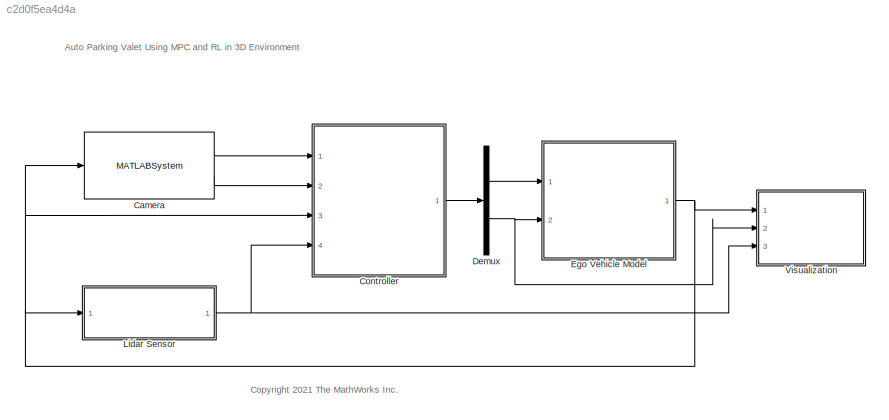
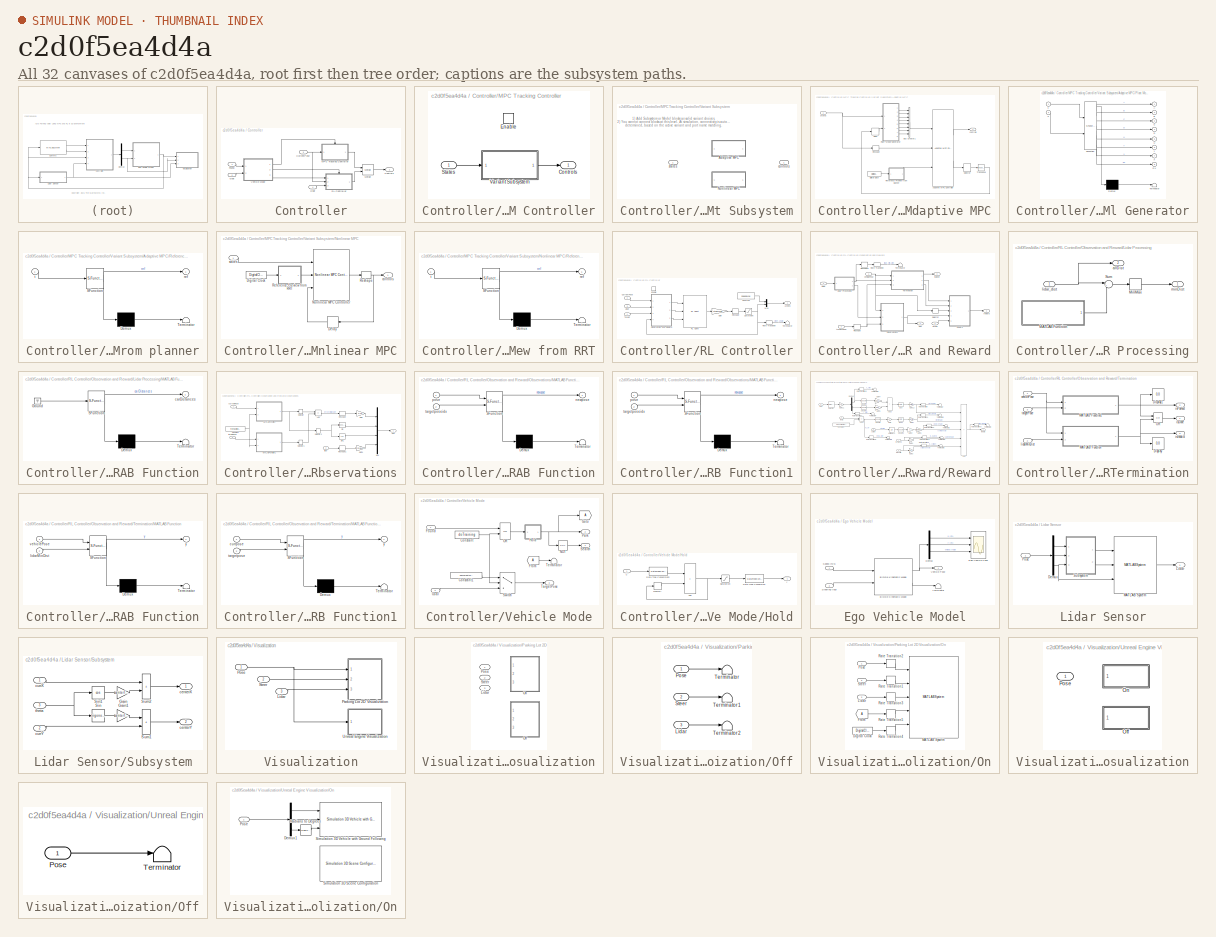
[diagram: thumbnail index - all 32 canvases of the model, root first then tree order]
MODEL slx_c2d0f5ea4d4a
KIND model
CONFIG AbsTol = 1e-4
CONFIG EnableMultiTasking = off
CONFIG FixedStep = auto
CONFIG InitFcn = % show(map);\nif doTraining == 0 \nsetOccupied(map, 1:46); \nsetFree(map, freeSpotIndex); \nend
CONFIG MaxStep = auto
CONFIG MinStep = auto
CONFIG RelTol = 1e-3
CONFIG SampleTimeConstraint = Unconstrained
CONFIG SolverName = VariableStepAuto
CONFIG StartTime = 0.0
CONFIG StopTime = Tf
BLOCK [MATLABSystem] Camera
  MapObject = map
  MaskDisplay = disp('Camera');\nport_label('input',1,'pose');\nport_label('output',1,'found');\nport_label('output',2,'goal');
  MaskType = Camera
  MaxDepth = cameraDepth
  MaxViewAngle = cameraViewAngle
  Ports = [1, 2]
  System = Camera
BLOCK [SubSystem] Controller
  Ports = [4, 1]
  RequestExecContextInheritance = off
BLOCK [Outport] Controller/Controls
BLOCK [Inport] Controller/CurrentPose
  Port = 3
BLOCK [Inport] Controller/Found
BLOCK [Inport] Controller/Goal
  Port = 2
BLOCK [Inport] Controller/Lidar
  Port = 4
BLOCK [SubSystem] Controller/MPC Tracking Controller
  Ports = [1, 1, 1]
  RequestExecContextInheritance = off
BLOCK [Outport] Controller/MPC Tracking Controller/Controls
BLOCK [EnablePort] Controller/MPC Tracking Controller/Enable
  Ports = []
  StatesWhenEnabling = reset
BLOCK [Inport] Controller/MPC Tracking Controller/States
BLOCK [SubSystem] Controller/MPC Tracking Controller/Variant Subsystem
  LabelModeActiveChoice = Choice_1
  Ports = [1, 1]
  RequestExecContextInheritance = off
  Variant = on
  VariantControlMode = label
BLOCK [SubSystem] Controller/MPC Tracking Controller/Variant Subsystem/Adaptive MPC
  Ports = [1, 1]
  RequestExecContextInheritance = off
  VariantControl = Choice_1
BLOCK [Reference] Controller/MPC Tracking Controller/Variant Subsystem/Adaptive MPC/Adaptive MPC Controller  REF=mpclib/Adaptive MPC Controller  (lib defined in mdl_ae329e0e0455)
  Ports = [3, 2]
  SCDEnableBlockLinearizationSpecification = on
  SourceBlock = mpclib/Adaptive MPC Controller
  SourceProductBaseCode = MP
  SourceType = Adaptive MPC
BLOCK [BusCreator] Controller/MPC Tracking Controller/Variant Subsystem/Adaptive MPC/Bus Creator1
  DisplayOption = bar
  InheritFromInputs = on
  Inputs = 8
  Ports = [8, 1]
BLOCK [Delay] Controller/MPC Tracking Controller/Variant Subsystem/Adaptive MPC/Delay
  DelayLength = 1
  InputPortMap = u0
  Ports = [1, 1]
BLOCK [DigitalClock] Controller/MPC Tracking Controller/Variant Subsystem/Adaptive MPC/Digital Clock
  SampleTime = Ts
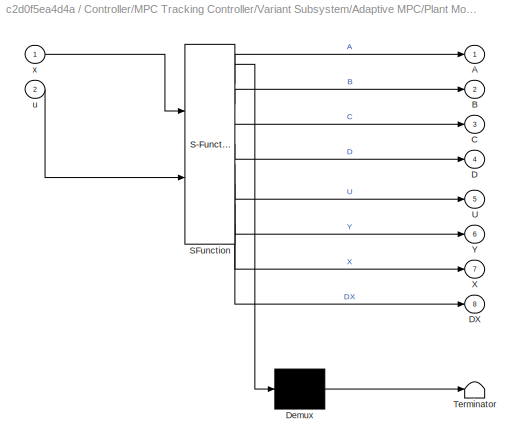
BLOCK [SubSystem] Controller/MPC Tracking Controller/Variant Subsystem/Adaptive MPC/Plant Model Generator
  ErrorFcn = Stateflow.Translate.translate
  PermitHierarchicalResolution = ExplicitOnly
  Ports = [2, 8]
  RequestExecContextInheritance = off
  SFBlockType = MATLAB Function
  TreatAsAtomicUnit = on
BLOCK [Demux] Controller/MPC Tracking Controller/Variant Subsystem/Adaptive MPC/Plant Model Generator/ Demux 
  Outputs = 1
  Ports = [1, 1]
BLOCK [S-Function] Controller/MPC Tracking Controller/Variant Subsystem/Adaptive MPC/Plant Model Generator/ SFunction 
  EnableBusSupport = on
  FunctionName = sf_sfun
  Parameters = Ts
  PortCounts = [2 9]
  Ports = [2, 9]
  SFcnIsStateOwnerBlock = off
  SFunctionDeploymentMode = off
  Tag = Stateflow S-Function 7
BLOCK [Terminator] Controller/MPC Tracking Controller/Variant Subsystem/Adaptive MPC/Plant Model Generator/ Terminator 
BLOCK [Outport] Controller/MPC Tracking Controller/Variant Subsystem/Adaptive MPC/Plant Model Generator/A
  VectorParamsAs1DForOutWhenUnconnected = off
BLOCK [Outport] Controller/MPC Tracking Controller/Variant Subsystem/Adaptive MPC/Plant Model Generator/B
  Port = 2
  VectorParamsAs1DForOutWhenUnconnected = off
BLOCK [Outport] Controller/MPC Tracking Controller/Variant Subsystem/Adaptive MPC/Plant Model Generator/C
  Port = 3
  VectorParamsAs1DForOutWhenUnconnected = off
BLOCK [Outport] Controller/MPC Tracking Controller/Variant Subsystem/Adaptive MPC/Plant Model Generator/D
  Port = 4
  VectorParamsAs1DForOutWhenUnconnected = off
BLOCK [Outport] Controller/MPC Tracking Controller/Variant Subsystem/Adaptive MPC/Plant Model Generator/DX
  Port = 8
  VectorParamsAs1DForOutWhenUnconnected = off
BLOCK [Outport] Controller/MPC Tracking Controller/Variant Subsystem/Adaptive MPC/Plant Model Generator/U
  Port = 5
  VectorParamsAs1DForOutWhenUnconnected = off
BLOCK [Outport] Controller/MPC Tracking Controller/Variant Subsystem/Adaptive MPC/Plant Model Generator/X
  Port = 7
  VectorParamsAs1DForOutWhenUnconnected = off
BLOCK [Outport] Controller/MPC Tracking Controller/Variant Subsystem/Adaptive MPC/Plant Model Generator/Y
  Port = 6
  VectorParamsAs1DForOutWhenUnconnected = off
BLOCK [Inport] Controller/MPC Tracking Controller/Variant Subsystem/Adaptive MPC/Plant Model Generator/u
  Port = 2
BLOCK [Inport] Controller/MPC Tracking Controller/Variant Subsystem/Adaptive MPC/Plant Model Generator/x
BLOCK [SubSystem] Controller/MPC Tracking Controller/Variant Subsystem/Adaptive MPC/Reference Preview from planner
  ErrorFcn = Stateflow.Translate.translate
  PermitHierarchicalResolution = ExplicitOnly
  Ports = [1, 1]
  RequestExecContextInheritance = off
  SFBlockType = MATLAB Function
  TreatAsAtomicUnit = on
BLOCK [Demux] Controller/MPC Tracking Controller/Variant Subsystem/Adaptive MPC/Reference Preview from planner/ Demux 
  Outputs = 1
  Ports = [1, 1]
BLOCK [S-Function] Controller/MPC Tracking Controller/Variant Subsystem/Adaptive MPC/Reference Preview from planner/ SFunction 
  EnableBusSupport = on
  FunctionName = sf_sfun
  Parameters = Tf,Ts,Xref,pTracking
  PortCounts = [1 2]
  Ports = [1, 2]
  SFcnIsStateOwnerBlock = off
  SFunctionDeploymentMode = off
  Tag = Stateflow S-Function 8
BLOCK [Terminator] Controller/MPC Tracking Controller/Variant Subsystem/Adaptive MPC/Reference Preview from planner/ Terminator 
BLOCK [Outport] Controller/MPC Tracking Controller/Variant Subsystem/Adaptive MPC/Reference Preview from planner/ref
  VectorParamsAs1DForOutWhenUnconnected = off
BLOCK [Inport] Controller/MPC Tracking Controller/Variant Subsystem/Adaptive MPC/Reference Preview from planner/t
BLOCK [Reshape] Controller/MPC Tracking Controller/Variant Subsystem/Adaptive MPC/Reshape
  OutputDimensionality = Customize
  OutputDimensions = [3,1]
  Ports = [1, 1]
BLOCK [Selector] Controller/MPC Tracking Controller/Variant Subsystem/Adaptive MPC/Selector
  IndexOptions = Index vector (dialog),Select all
  Indices = 2,2
  InputPortWidth = 3
  NumberOfDimensions = 2
  OutputSizes = 1,1
  Ports = [1, 1]
BLOCK [Math] Controller/MPC Tracking Controller/Variant Subsystem/Adaptive MPC/Transpose
  Operator = transpose
  Ports = [1, 1]
  SignedPower = on
BLOCK [Outport] Controller/MPC Tracking Controller/Variant Subsystem/Adaptive MPC/controls
BLOCK [Inport] Controller/MPC Tracking Controller/Variant Subsystem/Adaptive MPC/states
BLOCK [SubSystem] Controller/MPC Tracking Controller/Variant Subsystem/Nonlinear MPC
  Ports = [1, 1]
  RequestExecContextInheritance = off
  VariantControl = Choice_2
BLOCK [Delay] Controller/MPC Tracking Controller/Variant Subsystem/Nonlinear MPC/Delay
  DelayLength = 1
  InputPortMap = u0
  Ports = [1, 1]
BLOCK [DigitalClock] Controller/MPC Tracking Controller/Variant Subsystem/Nonlinear MPC/Digital Clock
  SampleTime = Ts
BLOCK [Reference] Controller/MPC Tracking Controller/Variant Subsystem/Nonlinear MPC/Nonlinear MPC Controller  REF=mpclib/Nonlinear MPC Controller  (lib defined in mdl_ae329e0e0455)
  Ports = [3, 1]
  SCDEnableBlockLinearizationSpecification = on
  SourceBlock = mpclib/Nonlinear MPC Controller
  SourceProductBaseCode = MP
  SourceType = NonlinearMPC
BLOCK [SubSystem] Controller/MPC Tracking Controller/Variant Subsystem/Nonlinear MPC/Reference Preview from RRT
  ErrorFcn = Stateflow.Translate.translate
  PermitHierarchicalResolution = ExplicitOnly
  Ports = [1, 1]
  RequestExecContextInheritance = off
  SFBlockType = MATLAB Function
  TreatAsAtomicUnit = on
BLOCK [Demux] Controller/MPC Tracking Controller/Variant Subsystem/Nonlinear MPC/Reference Preview from RRT/ Demux 
  Outputs = 1
  Ports = [1, 1]
BLOCK [S-Function] Controller/MPC Tracking Controller/Variant Subsystem/Nonlinear MPC/Reference Preview from RRT/ SFunction 
  EnableBusSupport = on
  FunctionName = sf_sfun
  Parameters = Tf,Ts,Xref,pTracking
  PortCounts = [1 2]
  Ports = [1, 2]
  SFcnIsStateOwnerBlock = off
  SFunctionDeploymentMode = off
  Tag = Stateflow S-Function 4
BLOCK [Terminator] Controller/MPC Tracking Controller/Variant Subsystem/Nonlinear MPC/Reference Preview from RRT/ Terminator 
BLOCK [Outport] Controller/MPC Tracking Controller/Variant Subsystem/Nonlinear MPC/Reference Preview from RRT/ref
  VectorParamsAs1DForOutWhenUnconnected = off
BLOCK [Inport] Controller/MPC Tracking Controller/Variant Subsystem/Nonlinear MPC/Reference Preview from RRT/t
BLOCK [Reshape] Controller/MPC Tracking Controller/Variant Subsystem/Nonlinear MPC/Reshape
  OutputDimensionality = Customize
  OutputDimensions = [2,1]
  Ports = [1, 1]
BLOCK [Outport] Controller/MPC Tracking Controller/Variant Subsystem/Nonlinear MPC/controls
BLOCK [Inport] Controller/MPC Tracking Controller/Variant Subsystem/Nonlinear MPC/states
BLOCK [Outport] Controller/MPC Tracking Controller/Variant Subsystem/controls
BLOCK [Inport] Controller/MPC Tracking Controller/Variant Subsystem/states
BLOCK [Merge] Controller/Merge
  Ports = [2, 1]
BLOCK [SubSystem] Controller/RL Controller
  Ports = [3, 1, 1]
  RequestExecContextInheritance = off
BLOCK [Outport] Controller/RL Controller/Actions
BLOCK [Constant] Controller/RL Controller/Constant
  Value = speedMax
BLOCK [Inport] Controller/RL Controller/CurrentPose
  Port = 2
BLOCK [EnablePort] Controller/RL Controller/Enable
  Ports = []
  StatesWhenEnabling = reset
BLOCK [Gain] Controller/RL Controller/Gain
  Gain = steerMax
BLOCK [Inport] Controller/RL Controller/Lidar
  Port = 3
BLOCK [Mux] Controller/RL Controller/Mux
  DisplayOption = bar
  Inputs = 2
  Ports = [2, 1]
BLOCK [SubSystem] Controller/RL Controller/Observation and Reward
  Ports = [4, 3]
  RequestExecContextInheritance = off
BLOCK [Inport] Controller/RL Controller/Observation and Reward/Lidar
  Port = 2
BLOCK [SubSystem] Controller/RL Controller/Observation and Reward/Lidar Processing
  Ports = [1, 2]
  RequestExecContextInheritance = off
BLOCK [SubSystem] Controller/RL Controller/Observation and Reward/Lidar Processing/MATLAB Function
  ErrorFcn = Stateflow.Translate.translate
  PermitHierarchicalResolution = ExplicitOnly
  Ports = [0, 1]
  RequestExecContextInheritance = off
  SFBlockType = MATLAB Function
  TreatAsAtomicUnit = on
BLOCK [Demux] Controller/RL Controller/Observation and Reward/Lidar Processing/MATLAB Function/ Demux 
  Outputs = 1
  Ports = [1, 1]
BLOCK [Ground] Controller/RL Controller/Observation and Reward/Lidar Processing/MATLAB Function/ Ground 
BLOCK [S-Function] Controller/RL Controller/Observation and Reward/Lidar Processing/MATLAB Function/ SFunction 
  EnableBusSupport = on
  FunctionName = sf_sfun
  Parameters = L,W,res
  PortCounts = [1 2]
  Ports = [1, 2]
  SFcnIsStateOwnerBlock = off
  SFunctionDeploymentMode = off
  Tag = Stateflow S-Function 3
BLOCK [Terminator] Controller/RL Controller/Observation and Reward/Lidar Processing/MATLAB Function/ Terminator 
BLOCK [Outport] Controller/RL Controller/Observation and Reward/Lidar Processing/MATLAB Function/carDistances
BLOCK [MinMax] Controller/RL Controller/Observation and Reward/Lidar Processing/MinMax
  Ports = [1, 1]
BLOCK [Sum] Controller/RL Controller/Observation and Reward/Lidar Processing/Sum
  Inputs = |+-
  Ports = [2, 1]
BLOCK [Outport] Controller/RL Controller/Observation and Reward/Lidar Processing/allDist
  Port = 2
BLOCK [Inport] Controller/RL Controller/Observation and Reward/Lidar Processing/lidar_dist
BLOCK [Outport] Controller/RL Controller/Observation and Reward/Lidar Processing/minDist
BLOCK [SubSystem] Controller/RL Controller/Observation and Reward/Observations
  Ports = [3, 1]
  RequestExecContextInheritance = off
BLOCK [Sum] Controller/RL Controller/Observation and Reward/Observations/Add
  IconShape = rectangular
  Inputs = +-
  Ports = [2, 1]
BLOCK [Constant] Controller/RL Controller/Observation and Reward/Observations/Constant
  Value = freeSpotIndex
BLOCK [Gain] Controller/RL Controller/Observation and Reward/Observations/Gain
  Gain = 1/10
BLOCK [Gain] Controller/RL Controller/Observation and Reward/Observations/Gain1
  Gain = 1/maxLidarDist
BLOCK [SubSystem] Controller/RL Controller/Observation and Reward/Observations/MATLAB Function
  ErrorFcn = Stateflow.Translate.translate
  PermitHierarchicalResolution = ExplicitOnly
  Ports = [2, 1]
  RequestExecContextInheritance = off
  SFBlockType = MATLAB Function
  TreatAsAtomicUnit = on
BLOCK [Demux] Controller/RL Controller/Observation and Reward/Observations/MATLAB Function/ Demux 
  Outputs = 1
  Ports = [1, 1]
BLOCK [S-Function] Controller/RL Controller/Observation and Reward/Observations/MATLAB Function/ SFunction 
  EnableBusSupport = on
  FunctionName = sf_sfun
  PortCounts = [2 2]
  Ports = [2, 2]
  SFcnIsStateOwnerBlock = off
  SFunctionDeploymentMode = off
  Tag = Stateflow S-Function 2
BLOCK [Terminator] Controller/RL Controller/Observation and Reward/Observations/MATLAB Function/ Terminator 
BLOCK [Outport] Controller/RL Controller/Observation and Reward/Observations/MATLAB Function/newpose
BLOCK [Inport] Controller/RL Controller/Observation and Reward/Observations/MATLAB Function/pose
BLOCK [Inport] Controller/RL Controller/Observation and Reward/Observations/MATLAB Function/targetposeidx
  Port = 2
BLOCK [SubSystem] Controller/RL Controller/Observation and Reward/Observations/MATLAB Function1
  ErrorFcn = Stateflow.Translate.translate
  PermitHierarchicalResolution = ExplicitOnly
  Ports = [2, 1]
  RequestExecContextInheritance = off
  SFBlockType = MATLAB Function
  TreatAsAtomicUnit = on
BLOCK [Demux] Controller/RL Controller/Observation and Reward/Observations/MATLAB Function1/ Demux 
  Outputs = 1
  Ports = [1, 1]
BLOCK [S-Function] Controller/RL Controller/Observation and Reward/Observations/MATLAB Function1/ SFunction 
  EnableBusSupport = on
  FunctionName = sf_sfun
  PortCounts = [2 2]
  Ports = [2, 2]
  SFcnIsStateOwnerBlock = off
  SFunctionDeploymentMode = off
  Tag = Stateflow S-Function 6
BLOCK [Terminator] Controller/RL Controller/Observation and Reward/Observations/MATLAB Function1/ Terminator 
BLOCK [Outport] Controller/RL Controller/Observation and Reward/Observations/MATLAB Function1/newpose
BLOCK [Inport] Controller/RL Controller/Observation and Reward/Observations/MATLAB Function1/pose
BLOCK [Inport] Controller/RL Controller/Observation and Reward/Observations/MATLAB Function1/targetposeidx
  Port = 2
BLOCK [Mux] Controller/RL Controller/Observation and Reward/Observations/Mux
  DisplayOption = bar
  Ports = [4, 1]
BLOCK [Reshape] Controller/RL Controller/Observation and Reward/Observations/Reshape
  Ports = [1, 1]
BLOCK [Reshape] Controller/RL Controller/Observation and Reward/Observations/Reshape1
  Ports = [1, 1]
BLOCK [Selector] Controller/RL Controller/Observation and Reward/Observations/Selector
  IndexOptions = Index vector (dialog)
  Indices = 1:2
  InputPortWidth = 3
  OutputSizes = 1
  Ports = [1, 1]
BLOCK [Selector] Controller/RL Controller/Observation and Reward/Observations/Selector1
  IndexOptions = Index vector (dialog)
  Indices = 1:2
  InputPortWidth = 3
  OutputSizes = 1
  Ports = [1, 1]
BLOCK [Selector] Controller/RL Controller/Observation and Reward/Observations/Selector3
  IndexOptions = Index vector (dialog)
  Indices = 3
  InputPortWidth = 3
  OutputSizes = 1
  Ports = [1, 1]
BLOCK [Trigonometry] Controller/RL Controller/Observation and Reward/Observations/Sin
  Ports = [1, 1]
BLOCK [Trigonometry] Controller/RL Controller/Observation and Reward/Observations/Sin1
  Operator = cos
  Ports = [1, 1]
BLOCK [Inport] Controller/RL Controller/Observation and Reward/Observations/currentPose
BLOCK [Inport] Controller/RL Controller/Observation and Reward/Observations/lidar
  Port = 2
BLOCK [Outport] Controller/RL Controller/Observation and Reward/Observations/obs
BLOCK [Inport] Controller/RL Controller/Observation and Reward/Observations/targetPose
  Port = 3
BLOCK [RateTransition] Controller/RL Controller/Observation and Reward/Rate Transition
  OutPortSampleTime = Ts_sample
BLOCK [Reshape] Controller/RL Controller/Observation and Reward/Reshape
  Ports = [1, 1]
BLOCK [Reshape] Controller/RL Controller/Observation and Reward/Reshape1
  Ports = [1, 1]
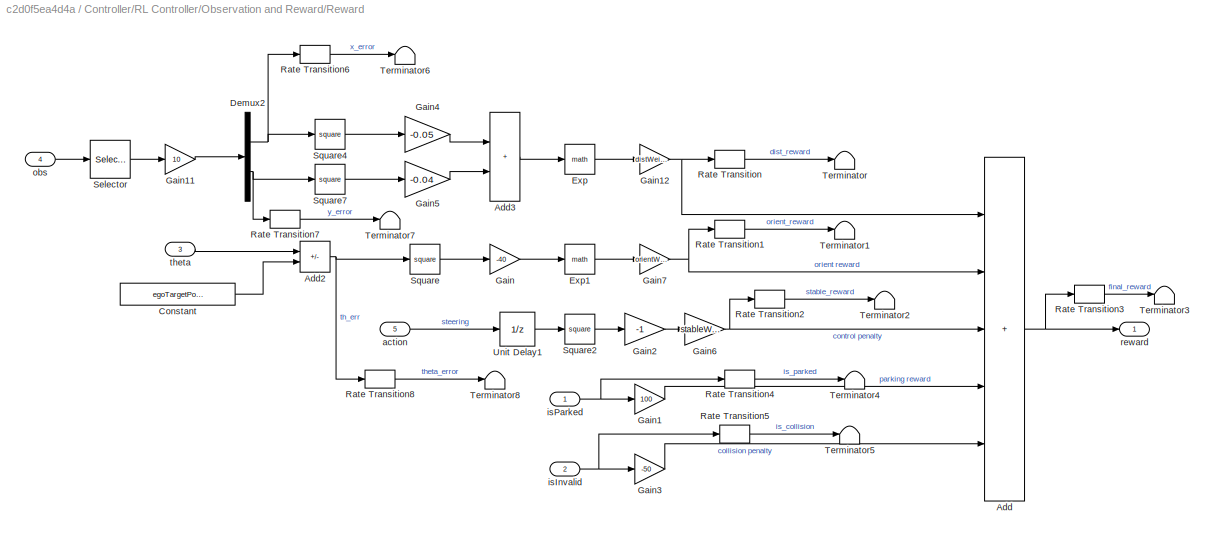
BLOCK [SubSystem] Controller/RL Controller/Observation and Reward/Reward
  Ports = [5, 1]
  RequestExecContextInheritance = off
BLOCK [Sum] Controller/RL Controller/Observation and Reward/Reward/Add
  IconShape = rectangular
  Inputs = +++++
  Ports = [5, 1]
BLOCK [Sum] Controller/RL Controller/Observation and Reward/Reward/Add2
  IconShape = rectangular
  Inputs = +-
  Ports = [2, 1]
BLOCK [Sum] Controller/RL Controller/Observation and Reward/Reward/Add3
  IconShape = rectangular
  Ports = [2, 1]
BLOCK [Constant] Controller/RL Controller/Observation and Reward/Reward/Constant
  Value = egoTargetPose(3)
BLOCK [Demux] Controller/RL Controller/Observation and Reward/Reward/Demux2
  Outputs = 2
  Ports = [1, 2]
BLOCK [Math] Controller/RL Controller/Observation and Reward/Reward/Exp
  Ports = [1, 1]
BLOCK [Math] Controller/RL Controller/Observation and Reward/Reward/Exp1
  Ports = [1, 1]
BLOCK [Gain] Controller/RL Controller/Observation and Reward/Reward/Gain
  Gain = -40
BLOCK [Gain] Controller/RL Controller/Observation and Reward/Reward/Gain1
  Gain = 100
BLOCK [Gain] Controller/RL Controller/Observation and Reward/Reward/Gain11
  Gain = 10
BLOCK [Gain] Controller/RL Controller/Observation and Reward/Reward/Gain12
  Gain = distWeight
BLOCK [Gain] Controller/RL Controller/Observation and Reward/Reward/Gain2
  Gain = -1
BLOCK [Gain] Controller/RL Controller/Observation and Reward/Reward/Gain3
  Gain = -50
BLOCK [Gain] Controller/RL Controller/Observation and Reward/Reward/Gain4
  Gain = -0.05
BLOCK [Gain] Controller/RL Controller/Observation and Reward/Reward/Gain5
  Gain = -0.04
BLOCK [Gain] Controller/RL Controller/Observation and Reward/Reward/Gain6
  Gain = stableWeight
BLOCK [Gain] Controller/RL Controller/Observation and Reward/Reward/Gain7
  Gain = orientWeight
BLOCK [RateTransition] Controller/RL Controller/Observation and Reward/Reward/Rate Transition
  OutPortSampleTime = Ts_sample
BLOCK [RateTransition] Controller/RL Controller/Observation and Reward/Reward/Rate Transition1
  OutPortSampleTime = Ts_sample
BLOCK [RateTransition] Controller/RL Controller/Observation and Reward/Reward/Rate Transition2
  OutPortSampleTime = Ts_sample
BLOCK [RateTransition] Controller/RL Controller/Observation and Reward/Reward/Rate Transition3
  OutPortSampleTime = Ts_sample
BLOCK [RateTransition] Controller/RL Controller/Observation and Reward/Reward/Rate Transition4
  OutPortSampleTime = Ts_sample
BLOCK [RateTransition] Controller/RL Controller/Observation and Reward/Reward/Rate Transition5
  OutPortSampleTime = Ts_sample
BLOCK [RateTransition] Controller/RL Controller/Observation and Reward/Reward/Rate Transition6
  OutPortSampleTime = Ts_sample
BLOCK [RateTransition] Controller/RL Controller/Observation and Reward/Reward/Rate Transition7
  OutPortSampleTime = Ts_sample
BLOCK [RateTransition] Controller/RL Controller/Observation and Reward/Reward/Rate Transition8
  OutPortSampleTime = Ts_sample
BLOCK [Selector] Controller/RL Controller/Observation and Reward/Reward/Selector
  IndexOptions = Index vector (dialog)
  Indices = 1:2
  InputPortWidth = nObs
  OutputSizes = 1
  Ports = [1, 1]
BLOCK [Math] Controller/RL Controller/Observation and Reward/Reward/Square
  Operator = square
  Ports = [1, 1]
BLOCK [Math] Controller/RL Controller/Observation and Reward/Reward/Square2
  Operator = square
  Ports = [1, 1]
BLOCK [Math] Controller/RL Controller/Observation and Reward/Reward/Square4
  Operator = square
  Ports = [1, 1]
BLOCK [Math] Controller/RL Controller/Observation and Reward/Reward/Square7
  Operator = square
  Ports = [1, 1]
BLOCK [Terminator] Controller/RL Controller/Observation and Reward/Reward/Terminator
BLOCK [Terminator] Controller/RL Controller/Observation and Reward/Reward/Terminator1
BLOCK [Terminator] Controller/RL Controller/Observation and Reward/Reward/Terminator2
BLOCK [Terminator] Controller/RL Controller/Observation and Reward/Reward/Terminator3
BLOCK [Terminator] Controller/RL Controller/Observation and Reward/Reward/Terminator4
BLOCK [Terminator] Controller/RL Controller/Observation and Reward/Reward/Terminator5
BLOCK [Terminator] Controller/RL Controller/Observation and Reward/Reward/Terminator6
BLOCK [Terminator] Controller/RL Controller/Observation and Reward/Reward/Terminator7
BLOCK [Terminator] Controller/RL Controller/Observation and Reward/Reward/Terminator8
BLOCK [UnitDelay] Controller/RL Controller/Observation and Reward/Reward/Unit Delay1
  HasFrameUpgradeWarning = on
  SampleTime = -1
BLOCK [Inport] Controller/RL Controller/Observation and Reward/Reward/action
  Port = 5
BLOCK [Inport] Controller/RL Controller/Observation and Reward/Reward/isInvalid
  Port = 2
BLOCK [Inport] Controller/RL Controller/Observation and Reward/Reward/isParked
BLOCK [Inport] Controller/RL Controller/Observation and Reward/Reward/obs
  Port = 4
BLOCK [Outport] Controller/RL Controller/Observation and Reward/Reward/reward
BLOCK [Inport] Controller/RL Controller/Observation and Reward/Reward/theta
  Port = 3
BLOCK [Selector] Controller/RL Controller/Observation and Reward/Selector
  IndexOptions = Index vector (dialog)
  Indices = 3
  InputPortWidth = 3
  OutputSizes = 1
  Ports = [1, 1]
BLOCK [SubSystem] Controller/RL Controller/Observation and Reward/Termination
  Ports = [3, 3]
  RequestExecContextInheritance = off
BLOCK [Display] Controller/RL Controller/Observation and Reward/Termination/Display
  Decimation = 1
  Ports = [1]
BLOCK [Display] Controller/RL Controller/Observation and Reward/Termination/Display1
  Decimation = 1
  Ports = [1]
BLOCK [SubSystem] Controller/RL Controller/Observation and Reward/Termination/MATLAB Function
  ErrorFcn = Stateflow.Translate.translate
  PermitHierarchicalResolution = ExplicitOnly
  Ports = [2, 1]
  RequestExecContextInheritance = off
  SFBlockType = MATLAB Function
  TreatAsAtomicUnit = on
BLOCK [Demux] Controller/RL Controller/Observation and Reward/Termination/MATLAB Function/ Demux 
  Outputs = 1
  Ports = [1, 1]
BLOCK [S-Function] Controller/RL Controller/Observation and Reward/Termination/MATLAB Function/ SFunction 
  EnableBusSupport = on
  FunctionName = sf_sfun
  Parameters = doTraining,lidarTol,trainXBounds,trainYBounds,xBounds,yBounds
  PortCounts = [2 2]
  Ports = [2, 2]
  SFcnIsStateOwnerBlock = off
  SFunctionDeploymentMode = off
  Tag = Stateflow S-Function 1
BLOCK [Terminator] Controller/RL Controller/Observation and Reward/Termination/MATLAB Function/ Terminator 
BLOCK [Inport] Controller/RL Controller/Observation and Reward/Termination/MATLAB Function/lidarMinDist
  Port = 2
BLOCK [Inport] Controller/RL Controller/Observation and Reward/Termination/MATLAB Function/vehiclePose
BLOCK [Outport] Controller/RL Controller/Observation and Reward/Termination/MATLAB Function/y
BLOCK [SubSystem] Controller/RL Controller/Observation and Reward/Termination/MATLAB Function1
  ErrorFcn = Stateflow.Translate.translate
  PermitHierarchicalResolution = ExplicitOnly
  Ports = [2, 1]
  RequestExecContextInheritance = off
  SFBlockType = MATLAB Function
  TreatAsAtomicUnit = on
BLOCK [Demux] Controller/RL Controller/Observation and Reward/Termination/MATLAB Function1/ Demux 
  Outputs = 1
  Ports = [1, 1]
BLOCK [S-Function] Controller/RL Controller/Observation and Reward/Termination/MATLAB Function1/ SFunction 
  EnableBusSupport = on
  FunctionName = sf_sfun
  Parameters = terrTol,xyerrTol
  PortCounts = [2 2]
  Ports = [2, 2]
  SFcnIsStateOwnerBlock = off
  SFunctionDeploymentMode = off
  Tag = Stateflow S-Function 5
BLOCK [Terminator] Controller/RL Controller/Observation and Reward/Termination/MATLAB Function1/ Terminator 
BLOCK [Inport] Controller/RL Controller/Observation and Reward/Termination/MATLAB Function1/currpose
BLOCK [Inport] Controller/RL Controller/Observation and Reward/Termination/MATLAB Function1/targetpose
  Port = 2
BLOCK [Outport] Controller/RL Controller/Observation and Reward/Termination/MATLAB Function1/y
BLOCK [Logic] Controller/RL Controller/Observation and Reward/Termination/OR
  AllPortsSameDT = off
  Operator = OR
  OutDataTypeStr = boolean
  Ports = [2, 1]
BLOCK [Outport] Controller/RL Controller/Observation and Reward/Termination/isDone
BLOCK [Outport] Controller/RL Controller/Observation and Reward/Termination/isInvalid
  Port = 3
BLOCK [Outport] Controller/RL Controller/Observation and Reward/Termination/isParked
  Port = 2
BLOCK [Inport] Controller/RL Controller/Observation and Reward/Termination/lidarMinDist
  Port = 2
BLOCK [Inport] Controller/RL Controller/Observation and Reward/Termination/targetPose
  Port = 3
BLOCK [Inport] Controller/RL Controller/Observation and Reward/Termination/vehiclePose
BLOCK [Terminator] Controller/RL Controller/Observation and Reward/Terminator
BLOCK [Inport] Controller/RL Controller/Observation and Reward/action
  Port = 4
BLOCK [Outport] Controller/RL Controller/Observation and Reward/isDone
  Port = 3
BLOCK [Outport] Controller/RL Controller/Observation and Reward/obs
BLOCK [Outport] Controller/RL Controller/Observation and Reward/reward
  Port = 2
BLOCK [Inport] Controller/RL Controller/Observation and Reward/targetpose
  Port = 3
BLOCK [Inport] Controller/RL Controller/Observation and Reward/vehiclePose
BLOCK [Reference] Controller/RL Controller/RL Agent  REF=rllib/RL Agent
  Ports = [3, 1]
  SourceBlock = rllib/RL Agent
  SourceProductBaseCode = RL
  SourceType = RL Agent
BLOCK [RateTransition] Controller/RL Controller/Rate Transition
  OutPortSampleTime = Ts_sample
BLOCK [Reshape] Controller/RL Controller/Reshape
  Ports = [1, 1]
BLOCK [Saturate] Controller/RL Controller/Saturation
  LowerLimit = -steerMax
  UpperLimit = steerMax
BLOCK [Inport] Controller/RL Controller/Target
BLOCK [Terminator] Controller/RL Controller/Terminator
BLOCK [SubSystem] Controller/Vehicle Mode
  Ports = [2, 3]
  RequestExecContextInheritance = off
BLOCK [Constant] Controller/Vehicle Mode/Constant
  Value = doTraining
BLOCK [Constant] Controller/Vehicle Mode/Constant1
  Value = egoTargetPose
BLOCK [Inport] Controller/Vehicle Mode/Found
BLOCK [From] Controller/Vehicle Mode/From
  TagVisibility = global
BLOCK [Inport] Controller/Vehicle Mode/Goal
  Port = 2
BLOCK [Goto] Controller/Vehicle Mode/Goto
  TagVisibility = global
BLOCK [SubSystem] Controller/Vehicle Mode/Hold
  Ports = [1, 1]
  RequestExecContextInheritance = off
BLOCK [Sum] Controller/Vehicle Mode/Hold/Add
  IconShape = rectangular
  Ports = [2, 1]
BLOCK [DataTypeConversion] Controller/Vehicle Mode/Hold/Data Type Conversion
  OutDataTypeStr = boolean
  RndMeth = Floor
  SaturateOnIntegerOverflow = off
BLOCK [DataTypeConversion] Controller/Vehicle Mode/Hold/Data Type Conversion2
  OutDataTypeStr = double
  RndMeth = Floor
  SaturateOnIntegerOverflow = off
BLOCK [Memory] Controller/Vehicle Mode/Hold/Memory
BLOCK [Saturate] Controller/Vehicle Mode/Hold/Saturation
  LowerLimit = 0
  UpperLimit = 1
BLOCK [Inport] Controller/Vehicle Mode/Hold/u
BLOCK [Outport] Controller/Vehicle Mode/Hold/y
BLOCK [Logic] Controller/Vehicle Mode/NOT
  AllPortsSameDT = off
  Operator = NOT
  OutDataTypeStr = boolean
  Ports = [1, 1]
BLOCK [Logic] Controller/Vehicle Mode/OR
  AllPortsSameDT = off
  Operator = OR
  OutDataTypeStr = boolean
  Ports = [2, 1]
BLOCK [Outport] Controller/Vehicle Mode/Park
  Port = 2
BLOCK [Outport] Controller/Vehicle Mode/Search
BLOCK [Switch] Controller/Vehicle Mode/Switch
  InputSameDT = off
  SaturateOnIntegerOverflow = off
  Threshold = 1
BLOCK [Outport] Controller/Vehicle Mode/TargetPose
  Port = 3
BLOCK [Terminator] Controller/Vehicle Mode/Terminator
BLOCK [Demux] Demux
  Outputs = 2
  Ports = [1, 2]
BLOCK [SubSystem] Ego Vehicle Model
  Ports = [2, 1]
  RequestExecContextInheritance = off
BLOCK [Reference] Ego Vehicle Model/Bicycle Kinematic Model  REF=robotmobilelib/Bicycle Kinematic Model
  Ports = [2, 2]
  SourceBlock = robotmobilelib/Bicycle Kinematic Model
  SourceProductBaseCode = RO
  SourceType = Bicycle Kinematic Model
BLOCK [Demux] Ego Vehicle Model/Demux
  Outputs = 3
  Ports = [1, 3]
BLOCK [Scope] Ego Vehicle Model/Ego Vehicle Pose
  Floating = off
  NumInputPorts = 3
  Ports = [3]
  ScopeSpecificationString = Simulink.scopes.TimeScopeBlockCfg('CurrentConfiguration', extmgr.ConfigurationSet(extmgr.Configuration('Core','General UI',true),extmgr.Configuration('Core','Source UI',true),extmgr.Configuration('Sources','WiredSimulink',true,'DataLoggingVariableName','ScopeData3'),extmgr.Configuration('Visuals','Time Domain',true,'SerializedDisplays',{struct('MinYLimReal','1.693','MaxYLimReal','44.26129','YLabel...<+2723ch>
BLOCK [Inport] Ego Vehicle Model/Speed (m//s)
BLOCK [Inport] Ego Vehicle Model/Steering (rad)
  Port = 2
BLOCK [Terminator] Ego Vehicle Model/Terminator
BLOCK [Outport] Ego Vehicle Model/Vehicle Pose
BLOCK [SubSystem] Lidar Sensor
  Ports = [1, 1]
  RequestExecContextInheritance = off
BLOCK [Demux] Lidar Sensor/Demux
  Outputs = 3
  Ports = [1, 3]
BLOCK [Outport] Lidar Sensor/Lidar
BLOCK [MATLABSystem] Lidar Sensor/MATLAB System
  CarGeometry = map.VehicleDimensions
  MapObject = map
  MaskDisplay = disp('LIDARSensor');\nport_label('input',1,'botx');\nport_label('input',2,'boty');\nport_label('input',3,'theta');\nport_label('output',1,'d');
  MaskType = LIDARSensor
  MaxDistance = maxLidarDist
  PlotLimits = [ xBounds yBounds ]
  Ports = [3, 1]
  SensorResolution = numSensors
  ShowLIDARPlot = 0
  System = LIDARSensor
BLOCK [Inport] Lidar Sensor/Pose
BLOCK [SubSystem] Lidar Sensor/Subsystem
  Ports = [3, 2]
  RequestExecContextInheritance = off
BLOCK [Gain] Lidar Sensor/Subsystem/Gain
  Gain = centerToRear
BLOCK [Gain] Lidar Sensor/Subsystem/Gain1
  Gain = centerToRear
BLOCK [Trigonometry] Lidar Sensor/Subsystem/Sin
  Ports = [1, 1]
BLOCK [Trigonometry] Lidar Sensor/Subsystem/Sin1
  Operator = cos
  Ports = [1, 1]
BLOCK [Sum] Lidar Sensor/Subsystem/Sum1
  IconShape = rectangular
  Ports = [2, 1]
BLOCK [Sum] Lidar Sensor/Subsystem/Sum2
  IconShape = rectangular
  Ports = [2, 1]
BLOCK [Outport] Lidar Sensor/Subsystem/centerX
BLOCK [Outport] Lidar Sensor/Subsystem/centerY
  Port = 2
BLOCK [Inport] Lidar Sensor/Subsystem/currX
BLOCK [Inport] Lidar Sensor/Subsystem/currY
  Port = 2
BLOCK [Inport] Lidar Sensor/Subsystem/theta
  Port = 3
BLOCK [SubSystem] Visualization
  Ports = [3]
  RequestExecContextInheritance = off
BLOCK [Inport] Visualization/Lidar
  Port = 3
BLOCK [SubSystem] Visualization/Parking Lot 2D Visualization
  LabelModeActiveChoice = VizOff
  Ports = [3]
  RequestExecContextInheritance = off
  Variant = on
  VariantControl = Choice
  VariantControlMode = label
BLOCK [Inport] Visualization/Parking Lot 2D Visualization/Lidar
  Port = 3
BLOCK [SubSystem] Visualization/Parking Lot 2D Visualization/Off
  Ports = [3]
  RequestExecContextInheritance = off
  VariantControl = VizOff
BLOCK [Inport] Visualization/Parking Lot 2D Visualization/Off/Lidar
  Port = 3
BLOCK [Inport] Visualization/Parking Lot 2D Visualization/Off/Pose
BLOCK [Inport] Visualization/Parking Lot 2D Visualization/Off/Steer
  Port = 2
BLOCK [Terminator] Visualization/Parking Lot 2D Visualization/Off/Terminator
BLOCK [Terminator] Visualization/Parking Lot 2D Visualization/Off/Terminator1
BLOCK [Terminator] Visualization/Parking Lot 2D Visualization/Off/Terminator2
BLOCK [SubSystem] Visualization/Parking Lot 2D Visualization/On
  Ports = [3]
  RequestExecContextInheritance = off
  VariantControl = VizOn
BLOCK [DigitalClock] Visualization/Parking Lot 2D Visualization/On/Digital Clock
  SampleTime = Ts
BLOCK [From] Visualization/Parking Lot 2D Visualization/On/From
  TagVisibility = global
BLOCK [Inport] Visualization/Parking Lot 2D Visualization/On/Lidar
  Port = 3
BLOCK [MATLABSystem] Visualization/Parking Lot 2D Visualization/On/MATLAB System
  CameraDepth = 10
  CameraViewAngle = deg2rad(60)
  MapObject = map
  MaskDisplay = disp('ParkingLot2DVisualizer');\nport_label('input',1,'pose');\nport_label('input',2,'steer');\nport_label('input',3,'lidar');\nport_label('input',4,'park');\nport_label('input',5,'currentTime');
  MaskType = ParkingLot2DVisualizer
  MaxLidarDistance = 6
  Ports = [5]
  System = ParkingLot2DVisualizer
  TrainingFlag = doTraining
BLOCK [Inport] Visualization/Parking Lot 2D Visualization/On/Pose
BLOCK [RateTransition] Visualization/Parking Lot 2D Visualization/On/Rate Transition1
BLOCK [RateTransition] Visualization/Parking Lot 2D Visualization/On/Rate Transition2
BLOCK [RateTransition] Visualization/Parking Lot 2D Visualization/On/Rate Transition3
BLOCK [RateTransition] Visualization/Parking Lot 2D Visualization/On/Rate Transition4
BLOCK [RateTransition] Visualization/Parking Lot 2D Visualization/On/Rate Transition5
BLOCK [Inport] Visualization/Parking Lot 2D Visualization/On/Steer
  Port = 2
BLOCK [Inport] Visualization/Parking Lot 2D Visualization/Pose
BLOCK [Inport] Visualization/Parking Lot 2D Visualization/Steer
  Port = 2
BLOCK [Inport] Visualization/Pose
BLOCK [Inport] Visualization/Steer
  Port = 2
BLOCK [SubSystem] Visualization/Unreal Engine Visualization
  LabelModeActiveChoice = UnrealOff
  Ports = [1]
  RequestExecContextInheritance = off
  Variant = on
  VariantControl = Choice
  VariantControlMode = label
BLOCK [SubSystem] Visualization/Unreal Engine Visualization/Off
  Ports = [1]
  RequestExecContextInheritance = off
  VariantControl = UnrealOff
BLOCK [Inport] Visualization/Unreal Engine Visualization/Off/Pose
BLOCK [Terminator] Visualization/Unreal Engine Visualization/Off/Terminator
BLOCK [SubSystem] Visualization/Unreal Engine Visualization/On
  Ports = [1]
  RequestExecContextInheritance = off
  VariantControl = UnrealOn
BLOCK [Demux] Visualization/Unreal Engine Visualization/On/Demux1
  Outputs = 3
  Ports = [1, 3]
BLOCK [Inport] Visualization/Unreal Engine Visualization/On/Pose
BLOCK [Reference] Visualization/Unreal Engine Visualization/On/Radians to Degrees  REF=simulink_extras/Transformations/Radians
to Degrees
  Ports = [1, 1]
  SourceBlock = simulink_extras/Transformations/Radians\nto Degrees
  SourceProductBaseCode = SL
  SourceType = RadiansToDegrees
BLOCK [Reference] Visualization/Unreal Engine Visualization/On/Simulation 3D Scene Configuration  REF=sim3dlib/Simulation 3D Scene Configuration
  Ports = []
  Priority = 0
  SourceBlock = sim3dlib/Simulation 3D Scene Configuration
  SourceProductBaseCode = VE,AE,DR,UV,VE
  SourceType = Simulation 3D Scene Configuration
BLOCK [Reference] Visualization/Unreal Engine Visualization/On/Simulation 3D Vehicle with Ground Following  REF=sim3dautolib/Simulation 3D Vehicle with Ground Following
  Ports = [3]
  Priority = -1
  SourceBlock = sim3dautolib/Simulation 3D Vehicle with Ground Following
  SourceProductBaseCode = VE,AE,DR,UV,VE
  SourceType = Simulation 3D Vehicle with Ground Following
BLOCK [Inport] Visualization/Unreal Engine Visualization/Pose
ANNOTATION (root): Auto Parking Valet Using MPC and RL in 3D Environment
ANNOTATION (root): <copyright redacted>
ANNOTATION Controller/MPC Tracking Controller/Variant Subsystem: 1) Add Subsystem or Model blocks as valid variant choices. 2) You cannot connect blocks at this level. At simulation, connectivity is automatically determined, based on the active variant and port name matching.
LINE Camera:1 -> Controller:1
LINE Camera:2 -> Controller:2
NET Controller/CurrentPose:1 -> Controller/MPC Tracking Controller:1, Controller/RL Controller:2
LINE Controller/Found:1 -> Controller/Vehicle Mode:1
LINE Controller/Goal:1 -> Controller/Vehicle Mode:2
LINE Controller/Lidar:1 -> Controller/RL Controller:3
LINE Controller/MPC Tracking Controller/States:1 -> Controller/MPC Tracking Controller/Variant Subsystem:1
LINE Controller/MPC Tracking Controller/Variant Subsystem/Adaptive MPC/Adaptive MPC Controller:1 -> Controller/MPC Tracking Controller/Variant Subsystem/Adaptive MPC/controls:1
LINE Controller/MPC Tracking Controller/Variant Subsystem/Adaptive MPC/Adaptive MPC Controller:2 -> Controller/MPC Tracking Controller/Variant Subsystem/Adaptive MPC/Selector:1
LINE Controller/MPC Tracking Controller/Variant Subsystem/Adaptive MPC/Bus Creator1:1 -> Controller/MPC Tracking Controller/Variant Subsystem/Adaptive MPC/Adaptive MPC Controller:1
LINE Controller/MPC Tracking Controller/Variant Subsystem/Adaptive MPC/Delay:1 -> Controller/MPC Tracking Controller/Variant Subsystem/Adaptive MPC/Plant Model Generator:2
LINE Controller/MPC Tracking Controller/Variant Subsystem/Adaptive MPC/Digital Clock:1 -> Controller/MPC Tracking Controller/Variant Subsystem/Adaptive MPC/Reference Preview from planner:1
LINE Controller/MPC Tracking Controller/Variant Subsystem/Adaptive MPC/Plant Model Generator:1 -> Controller/MPC Tracking Controller/Variant Subsystem/Adaptive MPC/Bus Creator1:1
LINE Controller/MPC Tracking Controller/Variant Subsystem/Adaptive MPC/Plant Model Generator:2 -> Controller/MPC Tracking Controller/Variant Subsystem/Adaptive MPC/Bus Creator1:2
LINE Controller/MPC Tracking Controller/Variant Subsystem/Adaptive MPC/Plant Model Generator:3 -> Controller/MPC Tracking Controller/Variant Subsystem/Adaptive MPC/Bus Creator1:3
LINE Controller/MPC Tracking Controller/Variant Subsystem/Adaptive MPC/Plant Model Generator:4 -> Controller/MPC Tracking Controller/Variant Subsystem/Adaptive MPC/Bus Creator1:4
LINE Controller/MPC Tracking Controller/Variant Subsystem/Adaptive MPC/Plant Model Generator:5 -> Controller/MPC Tracking Controller/Variant Subsystem/Adaptive MPC/Bus Creator1:5
LINE Controller/MPC Tracking Controller/Variant Subsystem/Adaptive MPC/Plant Model Generator:6 -> Controller/MPC Tracking Controller/Variant Subsystem/Adaptive MPC/Bus Creator1:6
LINE Controller/MPC Tracking Controller/Variant Subsystem/Adaptive MPC/Plant Model Generator:7 -> Controller/MPC Tracking Controller/Variant Subsystem/Adaptive MPC/Bus Creator1:7
LINE Controller/MPC Tracking Controller/Variant Subsystem/Adaptive MPC/Plant Model Generator:8 -> Controller/MPC Tracking Controller/Variant Subsystem/Adaptive MPC/Bus Creator1:8
LINE Controller/MPC Tracking Controller/Variant Subsystem/Adaptive MPC/Reference Preview from planner:1 -> Controller/MPC Tracking Controller/Variant Subsystem/Adaptive MPC/Adaptive MPC Controller:3
LINE Controller/MPC Tracking Controller/Variant Subsystem/Adaptive MPC/Reshape:1 -> Controller/MPC Tracking Controller/Variant Subsystem/Adaptive MPC/Adaptive MPC Controller:2
LINE Controller/MPC Tracking Controller/Variant Subsystem/Adaptive MPC/Selector:1 -> Controller/MPC Tracking Controller/Variant Subsystem/Adaptive MPC/Transpose:1
LINE Controller/MPC Tracking Controller/Variant Subsystem/Adaptive MPC/Transpose:1 -> Controller/MPC Tracking Controller/Variant Subsystem/Adaptive MPC/Delay:1
NET Controller/MPC Tracking Controller/Variant Subsystem/Adaptive MPC/states:1 -> Controller/MPC Tracking Controller/Variant Subsystem/Adaptive MPC/Plant Model Generator:1, Controller/MPC Tracking Controller/Variant Subsystem/Adaptive MPC/Reshape:1
LINE Controller/MPC Tracking Controller/Variant Subsystem/Nonlinear MPC/Delay:1 -> Controller/MPC Tracking Controller/Variant Subsystem/Nonlinear MPC/Nonlinear MPC Controller:3
LINE Controller/MPC Tracking Controller/Variant Subsystem/Nonlinear MPC/Digital Clock:1 -> Controller/MPC Tracking Controller/Variant Subsystem/Nonlinear MPC/Reference Preview from RRT:1
LINE Controller/MPC Tracking Controller/Variant Subsystem/Nonlinear MPC/Nonlinear MPC Controller:1 -> Controller/MPC Tracking Controller/Variant Subsystem/Nonlinear MPC/Reshape:1
LINE Controller/MPC Tracking Controller/Variant Subsystem/Nonlinear MPC/Reference Preview from RRT:1 -> Controller/MPC Tracking Controller/Variant Subsystem/Nonlinear MPC/Nonlinear MPC Controller:2
NET Controller/MPC Tracking Controller/Variant Subsystem/Nonlinear MPC/Reshape:1 -> Controller/MPC Tracking Controller/Variant Subsystem/Nonlinear MPC/Delay:1, Controller/MPC Tracking Controller/Variant Subsystem/Nonlinear MPC/controls:1
LINE Controller/MPC Tracking Controller/Variant Subsystem/Nonlinear MPC/states:1 -> Controller/MPC Tracking Controller/Variant Subsystem/Nonlinear MPC/Nonlinear MPC Controller:1
LINE Controller/MPC Tracking Controller/Variant Subsystem:1 -> Controller/MPC Tracking Controller/Controls:1
LINE Controller/MPC Tracking Controller:1 -> Controller/Merge:1
LINE Controller/Merge:1 -> Controller/Controls:1
LINE Controller/RL Controller/Constant:1 -> Controller/RL Controller/Mux:1
LINE Controller/RL Controller/CurrentPose:1 -> Controller/RL Controller/Observation and Reward:1
LINE Controller/RL Controller/Gain:1 -> Controller/RL Controller/Reshape:1
LINE Controller/RL Controller/Lidar:1 -> Controller/RL Controller/Observation and Reward:2
LINE Controller/RL Controller/Mux:1 -> Controller/RL Controller/Actions:1
LINE Controller/RL Controller/Observation and Reward/Lidar Processing/MATLAB Function:1 -> Controller/RL Controller/Observation and Reward/Lidar Processing/Sum:2
LINE Controller/RL Controller/Observation and Reward/Lidar Processing/MinMax:1 -> Controller/RL Controller/Observation and Reward/Lidar Processing/minDist:1
LINE Controller/RL Controller/Observation and Reward/Lidar Processing/Sum:1 -> Controller/RL Controller/Observation and Reward/Lidar Processing/MinMax:1
NET Controller/RL Controller/Observation and Reward/Lidar Processing/lidar_dist:1 -> Controller/RL Controller/Observation and Reward/Lidar Processing/Sum:1, Controller/RL Controller/Observation and Reward/Lidar Processing/allDist:1
NET Controller/RL Controller/Observation and Reward/Lidar Processing:1 -> Controller/RL Controller/Observation and Reward/Reshape1:1, Controller/RL Controller/Observation and Reward/Termination:2
LINE Controller/RL Controller/Observation and Reward/Lidar Processing:2 -> Controller/RL Controller/Observation and Reward/Observations:2
LINE Controller/RL Controller/Observation and Reward/Lidar:1 -> Controller/RL Controller/Observation and Reward/Lidar Processing:1
LINE Controller/RL Controller/Observation and Reward/Observations/Add:1 -> Controller/RL Controller/Observation and Reward/Observations/Reshape:1
NET Controller/RL Controller/Observation and Reward/Observations/Constant:1 -> Controller/RL Controller/Observation and Reward/Observations/MATLAB Function1:2, Controller/RL Controller/Observation and Reward/Observations/MATLAB Function:2
LINE Controller/RL Controller/Observation and Reward/Observations/Gain1:1 -> Controller/RL Controller/Observation and Reward/Observations/Mux:4
LINE Controller/RL Controller/Observation and Reward/Observations/Gain:1 -> Controller/RL Controller/Observation and Reward/Observations/Mux:1
LINE Controller/RL Controller/Observation and Reward/Observations/MATLAB Function1:1 -> Controller/RL Controller/Observation and Reward/Observations/Selector1:1
NET Controller/RL Controller/Observation and Reward/Observations/MATLAB Function:1 -> Controller/RL Controller/Observation and Reward/Observations/Selector3:1, Controller/RL Controller/Observation and Reward/Observations/Selector:1
LINE Controller/RL Controller/Observation and Reward/Observations/Mux:1 -> Controller/RL Controller/Observation and Reward/Observations/obs:1
LINE Controller/RL Controller/Observation and Reward/Observations/Reshape1:1 -> Controller/RL Controller/Observation and Reward/Observations/Gain1:1
LINE Controller/RL Controller/Observation and Reward/Observations/Reshape:1 -> Controller/RL Controller/Observation and Reward/Observations/Gain:1
LINE Controller/RL Controller/Observation and Reward/Observations/Selector1:1 -> Controller/RL Controller/Observation and Reward/Observations/Add:2
NET Controller/RL Controller/Observation and Reward/Observations/Selector3:1 -> Controller/RL Controller/Observation and Reward/Observations/Sin1:1, Controller/RL Controller/Observation and Reward/Observations/Sin:1
LINE Controller/RL Controller/Observation and Reward/Observations/Selector:1 -> Controller/RL Controller/Observation and Reward/Observations/Add:1
LINE Controller/RL Controller/Observation and Reward/Observations/Sin1:1 -> Controller/RL Controller/Observation and Reward/Observations/Mux:3
LINE Controller/RL Controller/Observation and Reward/Observations/Sin:1 -> Controller/RL Controller/Observation and Reward/Observations/Mux:2
LINE Controller/RL Controller/Observation and Reward/Observations/currentPose:1 -> Controller/RL Controller/Observation and Reward/Observations/MATLAB Function:1
LINE Controller/RL Controller/Observation and Reward/Observations/lidar:1 -> Controller/RL Controller/Observation and Reward/Observations/Reshape1:1
LINE Controller/RL Controller/Observation and Reward/Observations/targetPose:1 -> Controller/RL Controller/Observation and Reward/Observations/MATLAB Function1:1
NET Controller/RL Controller/Observation and Reward/Observations:1 -> Controller/RL Controller/Observation and Reward/Reward:4, Controller/RL Controller/Observation and Reward/obs:1
LINE Controller/RL Controller/Observation and Reward/Rate Transition:1 -> Controller/RL Controller/Observation and Reward/Terminator:1
LINE Controller/RL Controller/Observation and Reward/Reshape1:1 -> Controller/RL Controller/Observation and Reward/Rate Transition:1
NET Controller/RL Controller/Observation and Reward/Reshape:1 -> Controller/RL Controller/Observation and Reward/Observations:3, Controller/RL Controller/Observation and Reward/Termination:3
NET Controller/RL Controller/Observation and Reward/Reward/Add2:1 -> Controller/RL Controller/Observation and Reward/Reward/Rate Transition8:1, Controller/RL Controller/Observation and Reward/Reward/Square:1
LINE Controller/RL Controller/Observation and Reward/Reward/Add3:1 -> Controller/RL Controller/Observation and Reward/Reward/Exp:1
NET Controller/RL Controller/Observation and Reward/Reward/Add:1 -> Controller/RL Controller/Observation and Reward/Reward/Rate Transition3:1, Controller/RL Controller/Observation and Reward/Reward/reward:1
LINE Controller/RL Controller/Observation and Reward/Reward/Constant:1 -> Controller/RL Controller/Observation and Reward/Reward/Add2:2
NET Controller/RL Controller/Observation and Reward/Reward/Demux2:1 -> Controller/RL Controller/Observation and Reward/Reward/Rate Transition6:1, Controller/RL Controller/Observation and Reward/Reward/Square4:1
NET Controller/RL Controller/Observation and Reward/Reward/Demux2:2 -> Controller/RL Controller/Observation and Reward/Reward/Rate Transition7:1, Controller/RL Controller/Observation and Reward/Reward/Square7:1
LINE Controller/RL Controller/Observation and Reward/Reward/Exp1:1 -> Controller/RL Controller/Observation and Reward/Reward/Gain7:1
LINE Controller/RL Controller/Observation and Reward/Reward/Exp:1 -> Controller/RL Controller/Observation and Reward/Reward/Gain12:1
LINE Controller/RL Controller/Observation and Reward/Reward/Gain11:1 -> Controller/RL Controller/Observation and Reward/Reward/Demux2:1
NET Controller/RL Controller/Observation and Reward/Reward/Gain12:1 -> Controller/RL Controller/Observation and Reward/Reward/Add:1, Controller/RL Controller/Observation and Reward/Reward/Rate Transition:1
LINE Controller/RL Controller/Observation and Reward/Reward/Gain1:1 -> Controller/RL Controller/Observation and Reward/Reward/Add:4
LINE Controller/RL Controller/Observation and Reward/Reward/Gain2:1 -> Controller/RL Controller/Observation and Reward/Reward/Gain6:1
LINE Controller/RL Controller/Observation and Reward/Reward/Gain3:1 -> Controller/RL Controller/Observation and Reward/Reward/Add:5
LINE Controller/RL Controller/Observation and Reward/Reward/Gain4:1 -> Controller/RL Controller/Observation and Reward/Reward/Add3:1
LINE Controller/RL Controller/Observation and Reward/Reward/Gain5:1 -> Controller/RL Controller/Observation and Reward/Reward/Add3:2
NET Controller/RL Controller/Observation and Reward/Reward/Gain6:1 -> Controller/RL Controller/Observation and Reward/Reward/Add:3, Controller/RL Controller/Observation and Reward/Reward/Rate Transition2:1
NET Controller/RL Controller/Observation and Reward/Reward/Gain7:1 -> Controller/RL Controller/Observation and Reward/Reward/Add:2, Controller/RL Controller/Observation and Reward/Reward/Rate Transition1:1
LINE Controller/RL Controller/Observation and Reward/Reward/Gain:1 -> Controller/RL Controller/Observation and Reward/Reward/Exp1:1
LINE Controller/RL Controller/Observation and Reward/Reward/Rate Transition1:1 -> Controller/RL Controller/Observation and Reward/Reward/Terminator1:1
LINE Controller/RL Controller/Observation and Reward/Reward/Rate Transition2:1 -> Controller/RL Controller/Observation and Reward/Reward/Terminator2:1
LINE Controller/RL Controller/Observation and Reward/Reward/Rate Transition3:1 -> Controller/RL Controller/Observation and Reward/Reward/Terminator3:1
LINE Controller/RL Controller/Observation and Reward/Reward/Rate Transition4:1 -> Controller/RL Controller/Observation and Reward/Reward/Terminator4:1
LINE Controller/RL Controller/Observation and Reward/Reward/Rate Transition5:1 -> Controller/RL Controller/Observation and Reward/Reward/Terminator5:1
LINE Controller/RL Controller/Observation and Reward/Reward/Rate Transition6:1 -> Controller/RL Controller/Observation and Reward/Reward/Terminator6:1
LINE Controller/RL Controller/Observation and Reward/Reward/Rate Transition7:1 -> Controller/RL Controller/Observation and Reward/Reward/Terminator7:1
LINE Controller/RL Controller/Observation and Reward/Reward/Rate Transition8:1 -> Controller/RL Controller/Observation and Reward/Reward/Terminator8:1
LINE Controller/RL Controller/Observation and Reward/Reward/Rate Transition:1 -> Controller/RL Controller/Observation and Reward/Reward/Terminator:1
LINE Controller/RL Controller/Observation and Reward/Reward/Selector:1 -> Controller/RL Controller/Observation and Reward/Reward/Gain11:1
LINE Controller/RL Controller/Observation and Reward/Reward/Square2:1 -> Controller/RL Controller/Observation and Reward/Reward/Gain2:1
LINE Controller/RL Controller/Observation and Reward/Reward/Square4:1 -> Controller/RL Controller/Observation and Reward/Reward/Gain4:1
LINE Controller/RL Controller/Observation and Reward/Reward/Square7:1 -> Controller/RL Controller/Observation and Reward/Reward/Gain5:1
LINE Controller/RL Controller/Observation and Reward/Reward/Square:1 -> Controller/RL Controller/Observation and Reward/Reward/Gain:1
LINE Controller/RL Controller/Observation and Reward/Reward/Unit Delay1:1 -> Controller/RL Controller/Observation and Reward/Reward/Square2:1
LINE Controller/RL Controller/Observation and Reward/Reward/action:1 -> Controller/RL Controller/Observation and Reward/Reward/Unit Delay1:1
NET Controller/RL Controller/Observation and Reward/Reward/isInvalid:1 -> Controller/RL Controller/Observation and Reward/Reward/Gain3:1, Controller/RL Controller/Observation and Reward/Reward/Rate Transition5:1
NET Controller/RL Controller/Observation and Reward/Reward/isParked:1 -> Controller/RL Controller/Observation and Reward/Reward/Gain1:1, Controller/RL Controller/Observation and Reward/Reward/Rate Transition4:1
LINE Controller/RL Controller/Observation and Reward/Reward/obs:1 -> Controller/RL Controller/Observation and Reward/Reward/Selector:1
LINE Controller/RL Controller/Observation and Reward/Reward/theta:1 -> Controller/RL Controller/Observation and Reward/Reward/Add2:1
LINE Controller/RL Controller/Observation and Reward/Reward:1 -> Controller/RL Controller/Observation and Reward/reward:1
LINE Controller/RL Controller/Observation and Reward/Selector:1 -> Controller/RL Controller/Observation and Reward/Reward:3
NET Controller/RL Controller/Observation and Reward/Termination/MATLAB Function1:1 -> Controller/RL Controller/Observation and Reward/Termination/Display1:1, Controller/RL Controller/Observation and Reward/Termination/OR:1, Controller/RL Controller/Observation and Reward/Termination/isParked:1
NET Controller/RL Controller/Observation and Reward/Termination/MATLAB Function:1 -> Controller/RL Controller/Observation and Reward/Termination/Display:1, Controller/RL Controller/Observation and Reward/Termination/OR:2, Controller/RL Controller/Observation and Reward/Termination/isInvalid:1
LINE Controller/RL Controller/Observation and Reward/Termination/OR:1 -> Controller/RL Controller/Observation and Reward/Termination/isDone:1
LINE Controller/RL Controller/Observation and Reward/Termination/lidarMinDist:1 -> Controller/RL Controller/Observation and Reward/Termination/MATLAB Function:2
LINE Controller/RL Controller/Observation and Reward/Termination/targetPose:1 -> Controller/RL Controller/Observation and Reward/Termination/MATLAB Function1:2
NET Controller/RL Controller/Observation and Reward/Termination/vehiclePose:1 -> Controller/RL Controller/Observation and Reward/Termination/MATLAB Function1:1, Controller/RL Controller/Observation and Reward/Termination/MATLAB Function:1
LINE Controller/RL Controller/Observation and Reward/Termination:1 -> Controller/RL Controller/Observation and Reward/isDone:1
LINE Controller/RL Controller/Observation and Reward/Termination:2 -> Controller/RL Controller/Observation and Reward/Reward:1
LINE Controller/RL Controller/Observation and Reward/Termination:3 -> Controller/RL Controller/Observation and Reward/Reward:2
LINE Controller/RL Controller/Observation and Reward/action:1 -> Controller/RL Controller/Observation and Reward/Reward:5
LINE Controller/RL Controller/Observation and Reward/targetpose:1 -> Controller/RL Controller/Observation and Reward/Reshape:1
NET Controller/RL Controller/Observation and Reward/vehiclePose:1 -> Controller/RL Controller/Observation and Reward/Observations:1, Controller/RL Controller/Observation and Reward/Selector:1, Controller/RL Controller/Observation and Reward/Termination:1
LINE Controller/RL Controller/Observation and Reward:1 -> Controller/RL Controller/RL Agent:1
LINE Controller/RL Controller/Observation and Reward:2 -> Controller/RL Controller/RL Agent:2
LINE Controller/RL Controller/Observation and Reward:3 -> Controller/RL Controller/RL Agent:3
LINE Controller/RL Controller/RL Agent:1 -> Controller/RL Controller/Gain:1
LINE Controller/RL Controller/Rate Transition:1 -> Controller/RL Controller/Terminator:1
LINE Controller/RL Controller/Reshape:1 -> Controller/RL Controller/Saturation:1
NET Controller/RL Controller/Saturation:1 -> Controller/RL Controller/Mux:2, Controller/RL Controller/Observation and Reward:4, Controller/RL Controller/Rate Transition:1
LINE Controller/RL Controller/Target:1 -> Controller/RL Controller/Observation and Reward:3
LINE Controller/RL Controller:1 -> Controller/Merge:2
LINE Controller/Vehicle Mode/Constant1:1 -> Controller/Vehicle Mode/Switch:1
NET Controller/Vehicle Mode/Constant:1 -> Controller/Vehicle Mode/OR:2, Controller/Vehicle Mode/Switch:2
LINE Controller/Vehicle Mode/Found:1 -> Controller/Vehicle Mode/OR:1
LINE Controller/Vehicle Mode/From:1 -> Controller/Vehicle Mode/Terminator:1
LINE Controller/Vehicle Mode/Goal:1 -> Controller/Vehicle Mode/Switch:3
NET Controller/Vehicle Mode/Hold/Add:1 -> Controller/Vehicle Mode/Hold/Memory:1, Controller/Vehicle Mode/Hold/Saturation:1
LINE Controller/Vehicle Mode/Hold/Data Type Conversion2:1 -> Controller/Vehicle Mode/Hold/Add:1
LINE Controller/Vehicle Mode/Hold/Data Type Conversion:1 -> Controller/Vehicle Mode/Hold/y:1
LINE Controller/Vehicle Mode/Hold/Memory:1 -> Controller/Vehicle Mode/Hold/Add:2
LINE Controller/Vehicle Mode/Hold/Saturation:1 -> Controller/Vehicle Mode/Hold/Data Type Conversion:1
LINE Controller/Vehicle Mode/Hold/u:1 -> Controller/Vehicle Mode/Hold/Data Type Conversion2:1
NET Controller/Vehicle Mode/Hold:1 -> Controller/Vehicle Mode/Goto:1, Controller/Vehicle Mode/NOT:1, Controller/Vehicle Mode/Park:1
LINE Controller/Vehicle Mode/NOT:1 -> Controller/Vehicle Mode/Search:1
LINE Controller/Vehicle Mode/OR:1 -> Controller/Vehicle Mode/Hold:1
LINE Controller/Vehicle Mode/Switch:1 -> Controller/Vehicle Mode/TargetPose:1
LINE Controller/Vehicle Mode:1 -> Controller/MPC Tracking Controller:enable
LINE Controller/Vehicle Mode:2 -> Controller/RL Controller:enable
LINE Controller/Vehicle Mode:3 -> Controller/RL Controller:1
LINE Controller:1 -> Demux:1
LINE Demux:1 -> Ego Vehicle Model:1
NET Demux:2 -> Ego Vehicle Model:2, Visualization:2
NET Ego Vehicle Model/Bicycle Kinematic Model:1 -> Ego Vehicle Model/Demux:1, Ego Vehicle Model/Vehicle Pose:1
LINE Ego Vehicle Model/Bicycle Kinematic Model:2 -> Ego Vehicle Model/Terminator:1
LINE Ego Vehicle Model/Demux:1 -> Ego Vehicle Model/Ego Vehicle Pose:1
LINE Ego Vehicle Model/Demux:2 -> Ego Vehicle Model/Ego Vehicle Pose:2
LINE Ego Vehicle Model/Demux:3 -> Ego Vehicle Model/Ego Vehicle Pose:3
LINE Ego Vehicle Model/Speed (m//s):1 -> Ego Vehicle Model/Bicycle Kinematic Model:1
LINE Ego Vehicle Model/Steering (rad):1 -> Ego Vehicle Model/Bicycle Kinematic Model:2
NET Ego Vehicle Model:1 -> Camera:1, Controller:3, Lidar Sensor:1, Visualization:1
LINE Lidar Sensor/Demux:1 -> Lidar Sensor/Subsystem:1
LINE Lidar Sensor/Demux:2 -> Lidar Sensor/Subsystem:2
NET Lidar Sensor/Demux:3 -> Lidar Sensor/MATLAB System:3, Lidar Sensor/Subsystem:3
LINE Lidar Sensor/MATLAB System:1 -> Lidar Sensor/Lidar:1
LINE Lidar Sensor/Pose:1 -> Lidar Sensor/Demux:1
LINE Lidar Sensor/Subsystem/Gain1:1 -> Lidar Sensor/Subsystem/Sum1:1
LINE Lidar Sensor/Subsystem/Gain:1 -> Lidar Sensor/Subsystem/Sum2:2
LINE Lidar Sensor/Subsystem/Sin1:1 -> Lidar Sensor/Subsystem/Gain:1
LINE Lidar Sensor/Subsystem/Sin:1 -> Lidar Sensor/Subsystem/Gain1:1
LINE Lidar Sensor/Subsystem/Sum1:1 -> Lidar Sensor/Subsystem/centerY:1
LINE Lidar Sensor/Subsystem/Sum2:1 -> Lidar Sensor/Subsystem/centerX:1
LINE Lidar Sensor/Subsystem/currX:1 -> Lidar Sensor/Subsystem/Sum2:1
LINE Lidar Sensor/Subsystem/currY:1 -> Lidar Sensor/Subsystem/Sum1:2
NET Lidar Sensor/Subsystem/theta:1 -> Lidar Sensor/Subsystem/Sin1:1, Lidar Sensor/Subsystem/Sin:1
LINE Lidar Sensor/Subsystem:1 -> Lidar Sensor/MATLAB System:1
LINE Lidar Sensor/Subsystem:2 -> Lidar Sensor/MATLAB System:2
NET Lidar Sensor:1 -> Controller:4, Visualization:3
LINE Visualization/Lidar:1 -> Visualization/Parking Lot 2D Visualization:3
LINE Visualization/Parking Lot 2D Visualization/Off/Lidar:1 -> Visualization/Parking Lot 2D Visualization/Off/Terminator2:1
LINE Visualization/Parking Lot 2D Visualization/Off/Pose:1 -> Visualization/Parking Lot 2D Visualization/Off/Terminator:1
LINE Visualization/Parking Lot 2D Visualization/Off/Steer:1 -> Visualization/Parking Lot 2D Visualization/Off/Terminator1:1
LINE Visualization/Parking Lot 2D Visualization/On/Digital Clock:1 -> Visualization/Parking Lot 2D Visualization/On/Rate Transition4:1
LINE Visualization/Parking Lot 2D Visualization/On/From:1 -> Visualization/Parking Lot 2D Visualization/On/Rate Transition5:1
LINE Visualization/Parking Lot 2D Visualization/On/Lidar:1 -> Visualization/Parking Lot 2D Visualization/On/Rate Transition3:1
LINE Visualization/Parking Lot 2D Visualization/On/Pose:1 -> Visualization/Parking Lot 2D Visualization/On/Rate Transition2:1
LINE Visualization/Parking Lot 2D Visualization/On/Rate Transition1:1 -> Visualization/Parking Lot 2D Visualization/On/MATLAB System:2
LINE Visualization/Parking Lot 2D Visualization/On/Rate Transition2:1 -> Visualization/Parking Lot 2D Visualization/On/MATLAB System:1
LINE Visualization/Parking Lot 2D Visualization/On/Rate Transition3:1 -> Visualization/Parking Lot 2D Visualization/On/MATLAB System:3
LINE Visualization/Parking Lot 2D Visualization/On/Rate Transition4:1 -> Visualization/Parking Lot 2D Visualization/On/MATLAB System:5
LINE Visualization/Parking Lot 2D Visualization/On/Rate Transition5:1 -> Visualization/Parking Lot 2D Visualization/On/MATLAB System:4
LINE Visualization/Parking Lot 2D Visualization/On/Steer:1 -> Visualization/Parking Lot 2D Visualization/On/Rate Transition1:1
NET Visualization/Pose:1 -> Visualization/Parking Lot 2D Visualization:1, Visualization/Unreal Engine Visualization:1
LINE Visualization/Steer:1 -> Visualization/Parking Lot 2D Visualization:2
LINE Visualization/Unreal Engine Visualization/Off/Pose:1 -> Visualization/Unreal Engine Visualization/Off/Terminator:1
LINE Visualization/Unreal Engine Visualization/On/Demux1:1 -> Visualization/Unreal Engine Visualization/On/Simulation 3D Vehicle with Ground Following:1
LINE Visualization/Unreal Engine Visualization/On/Demux1:2 -> Visualization/Unreal Engine Visualization/On/Simulation 3D Vehicle with Ground Following:2
LINE Visualization/Unreal Engine Visualization/On/Demux1:3 -> Visualization/Unreal Engine Visualization/On/Radians to Degrees:1
LINE Visualization/Unreal Engine Visualization/On/Pose:1 -> Visualization/Unreal Engine Visualization/On/Demux1:1
LINE Visualization/Unreal Engine Visualization/On/Radians to Degrees:1 -> Visualization/Unreal Engine Visualization/On/Simulation 3D Vehicle with Ground Following:3
note: NET lines group one-source signal fan-out (src -> all destinations, sorted); 1:1 wires keep LINE
CHART Controller/RL Controller/Observation and Reward/Termination/MATLAB Function states=1 transitions=1
  STATE_LABEL 'eML_blk_kernel()'
  STATE_LABEL 'SCRIPT:\nfunction y = isOutOfBounds(vehiclePose, lidarMinDist, xBounds, yBounds, trainXBounds, trainYBounds, doTraining, lidarTol)\n\nif doTraining\n    xlims = trainXBounds;\n    ylims = trainYBounds;\nelse\n    xlims = xBounds;\n    ylims = yBounds;\nend\n\n% get coordinates of four corners\nxc = vehiclePose(1);\nyc = vehiclePose(2);\nt  = vehiclePose(3);\n\n% threshold\ntol = 0.1;\n\n% Check if true positions are...<+391ch>'
CHART Controller/RL Controller/Observation and Reward/Observations/MATLAB Function states=1 transitions=1
  STATE_LABEL 'eML_blk_kernel()'
  STATE_LABEL 'SCRIPT:\nfunction newpose = transformPose(pose,targetposeidx)\nnewpose = transformPose(pose,targetposeidx);\n'
CHART Controller/RL Controller/Observation and Reward/Lidar Processing/MATLAB Function states=1 transitions=1
  STATE_LABEL 'eML_blk_kernel()'
  STATE_LABEL 'SCRIPT:\nfunction carDistances = getDistances2CarBoundary(W,L,res)\n\nangles = (0:(res-1))*2*pi/res;\ncarDistances = getCarSegmentLengths(L,W,angles);'
CHART Controller/MPC Tracking Controller/Variant Subsystem/Nonlinear MPC/Reference Preview from RRT states=1 transitions=1
  STATE_LABEL 'eML_blk_kernel()'
  STATE_LABEL 'SCRIPT:\nfunction ref = fcn(t,Ts,Tf,pTracking,Xref)\nTend = Tf;\nT = t+(1:pTracking)*Ts;\nT = min(T,Tend);\ntime = Ts*(1:length(Xref));\nref = interp1(time,Xref,T);\n'
CHART Controller/RL Controller/Observation and Reward/Termination/MATLAB Function1 states=1 transitions=1
  STATE_LABEL 'eML_blk_kernel()'
  STATE_LABEL 'SCRIPT:\nfunction y = isParked(currpose,targetpose, xyerrTol, terrTol)\n\nx = currpose(1);\ny = currpose(2);\nt = currpose(3);\nxg = targetpose(1);\nyg = targetpose(2);\ntg = targetpose(3);\nxyerr = sqrt((x-xg)^2+(y-yg)^2);\nterr = wrapToPi(t)-tg;\ny = 0;\nif xyerr < xyerrTol && abs(terr) < terrTol\n    y = 1;\nend'
CHART Controller/RL Controller/Observation and Reward/Observations/MATLAB Function1 states=1 transitions=1
  STATE_LABEL 'eML_blk_kernel()'
  STATE_LABEL 'SCRIPT:\nfunction newpose = transformPose(pose,targetposeidx)\nnewpose = transformPose(pose,targetposeidx);\n'
CHART Controller/MPC Tracking Controller/Variant Subsystem/Adaptive MPC/Plant Model Generator states=1 transitions=1
  STATE_LABEL 'eML_blk_kernel()'
  STATE_LABEL 'SCRIPT:\nfunction [A,B,C,D,U,Y,X,DX] = fcn(x,u,Ts)\n\n[A,B,C,D,U,Y,X,DX] = vehicleStateJacobianFcnDT(Ts,x,u);\n'
CHART Controller/MPC Tracking Controller/Variant Subsystem/Adaptive MPC/Reference Preview from planner states=1 transitions=1
  STATE_LABEL 'eML_blk_kernel()'
  STATE_LABEL 'SCRIPT:\nfunction ref = fcn(t,Ts,Tf,pTracking,Xref)\nTend = Tf;\nT = t+(1:pTracking)*Ts;\nT = min(T,Tend);\ntime = Ts*(1:length(Xref*1.2));\nref = interp1(time,Xref,T);\n'
CHART  states=0 transitions=0
CHART  states=0 transitions=0
CHART  states=0 transitions=0
CHART  states=0 transitions=0
CHART  states=0 transitions=0
CHART  states=0 transitions=0
CHART  states=0 transitions=0
CHART  states=0 transitions=0
